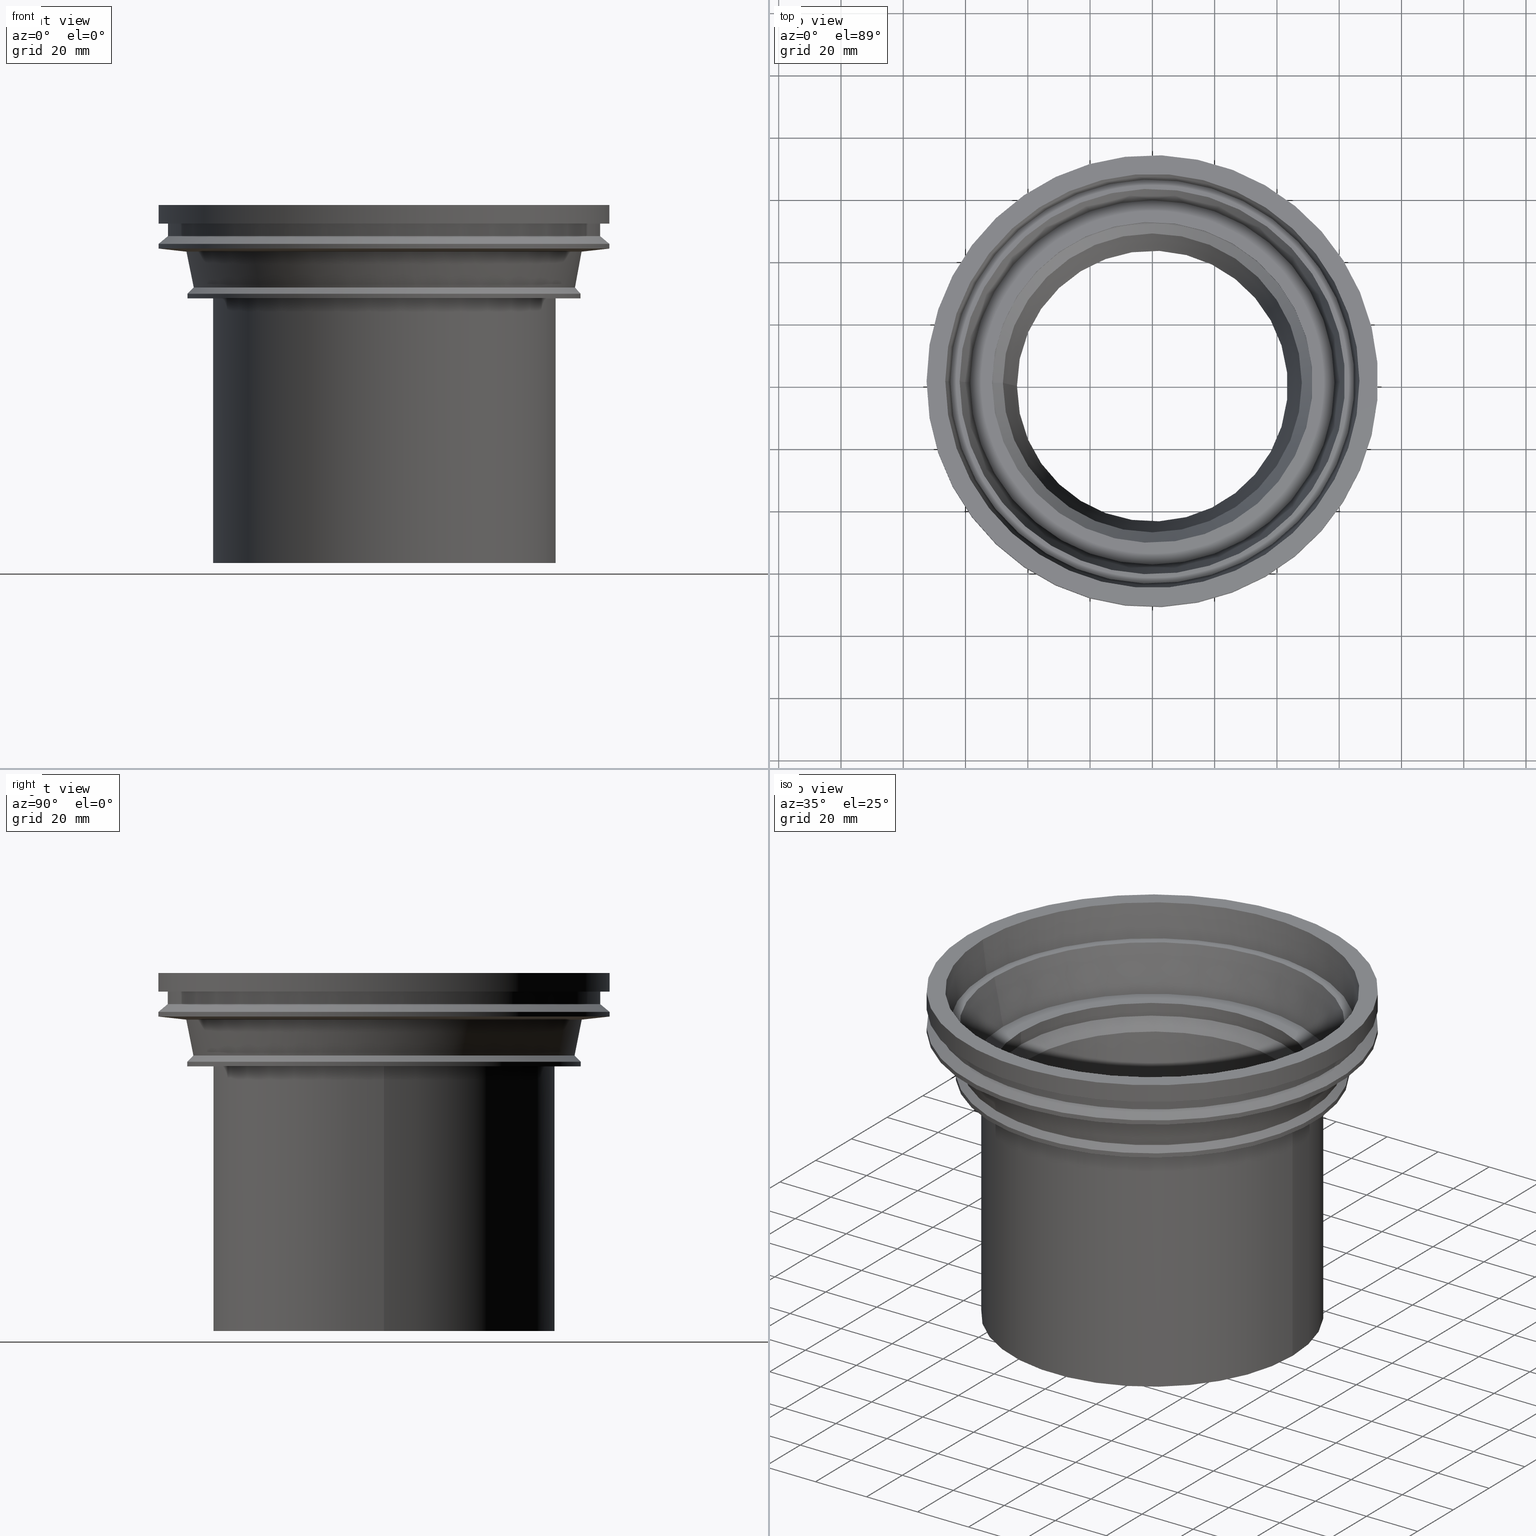
[diagram: canonical four-view strip — front | top / right | iso, engineering-drawing reading convention]
A machine part, canonical four-view strip (front | top / right | iso — engineering-drawing reading convention). The complete STEP part file that produces these views, byte-faithful:
ISO-10303-21;
HEADER;
/* Generated by software containing ST-Developer
 * from STEP Tools, Inc. (www.steptools.com) 
 */
/* OPTION: using custom renumber hook */

FILE_DESCRIPTION(
/* description */ ('STEP AP214'),
/* implementation_level */ '2;1');

FILE_NAME(
/* name */ '482010001(1)',
/* time_stamp */ '2022-12-23T08:15:30+01:00',
/* author */ ('License CC BY-ND 4.0'),
/* organization */ ('CADENAS'),
/* preprocessor_version */ 'ST-DEVELOPER v18.102',
/* originating_system */ 'PARTsolutions',
/* authorisation */ '  ');

FILE_SCHEMA (('AUTOMOTIVE_DESIGN {1 0 10303 214 3 1 1}'));
ENDSEC;

DATA;
#10=PROPERTY_DEFINITION_REPRESENTATION(#14,#12);
#11=PROPERTY_DEFINITION_REPRESENTATION(#15,#13);
#12=REPRESENTATION('',(#16),#588);
#13=REPRESENTATION('',(#17),#588);
#14=PROPERTY_DEFINITION('pmi validation property','',#597);
#15=PROPERTY_DEFINITION('pmi validation property','',#597);
#16=VALUE_REPRESENTATION_ITEM('number of annotations',COUNT_MEASURE(0.));
#17=VALUE_REPRESENTATION_ITEM('number of views',COUNT_MEASURE(0.));
#18=CONICAL_SURFACE('',#351,63.556,1.45945195543957);
#19=CONICAL_SURFACE('',#356,72.5,0.876058050598193);
#20=CONICAL_SURFACE('',#366,66.5,0.132797157435015);
#21=CONICAL_SURFACE('',#370,61.897,0.201179487707473);
#22=CONICAL_SURFACE('',#376,51.5,0.718829999621625);
#23=CONICAL_SURFACE('',#378,48.,0.0766302366143812);
#24=CONICAL_SURFACE('',#382,45.,0.0766314619462777);
#25=CONICAL_SURFACE('',#384,49.223,0.92729521800161);
#26=CONICAL_SURFACE('',#392,63.223,0.788389181397253);
#27=CONICAL_SURFACE('',#394,61.211,0.201155254725828);
#28=CONTEXT_DEPENDENT_SHAPE_REPRESENTATION(#32,#599);
#29=CONTEXT_DEPENDENT_SHAPE_REPRESENTATION(#33,#601);
#30=NEXT_ASSEMBLY_USAGE_OCCURRENCE('NAUO1','482010001(1,85)_P2',
'482010001(1,85)_P2',#602,#603,'');
#31=NEXT_ASSEMBLY_USAGE_OCCURRENCE('NAUO2','482010001(1)_P1',
'482010001(1)_P1',#602,#604,'');
#32=(
REPRESENTATION_RELATIONSHIP(' ',' ',#339,#338)
REPRESENTATION_RELATIONSHIP_WITH_TRANSFORMATION(#34)
SHAPE_REPRESENTATION_RELATIONSHIP()
);
#33=(
REPRESENTATION_RELATIONSHIP(' ',' ',#340,#338)
REPRESENTATION_RELATIONSHIP_WITH_TRANSFORMATION(#35)
SHAPE_REPRESENTATION_RELATIONSHIP()
);
#34=ITEM_DEFINED_TRANSFORMATION(' ',' ',#341,#350);
#35=ITEM_DEFINED_TRANSFORMATION(' ',' ',#341,#395);
#36=SHAPE_REPRESENTATION_RELATIONSHIP('','',#339,#38);
#37=SHAPE_REPRESENTATION_RELATIONSHIP('','',#340,#39);
#38=ADVANCED_BREP_SHAPE_REPRESENTATION('',(#333),#589);
#39=ADVANCED_BREP_SHAPE_REPRESENTATION('',(#334),#590);
#40=CYLINDRICAL_SURFACE('',#345,52.5);
#41=CYLINDRICAL_SURFACE('',#349,55.);
#42=CYLINDRICAL_SURFACE('',#354,72.5);
#43=CYLINDRICAL_SURFACE('',#358,69.5);
#44=CYLINDRICAL_SURFACE('',#362,72.5);
#45=CYLINDRICAL_SURFACE('',#374,51.5);
#46=CYLINDRICAL_SURFACE('',#386,53.223);
#47=CYLINDRICAL_SURFACE('',#390,63.223);
#48=ORIENTED_EDGE('',*,*,#100,.T.);
#49=ORIENTED_EDGE('',*,*,#101,.F.);
#50=ORIENTED_EDGE('',*,*,#102,.T.);
#51=ORIENTED_EDGE('',*,*,#100,.F.);
#52=ORIENTED_EDGE('',*,*,#103,.T.);
#53=ORIENTED_EDGE('',*,*,#102,.F.);
#54=ORIENTED_EDGE('',*,*,#101,.T.);
#55=ORIENTED_EDGE('',*,*,#103,.F.);
#56=ORIENTED_EDGE('',*,*,#104,.T.);
#57=ORIENTED_EDGE('',*,*,#105,.F.);
#58=ORIENTED_EDGE('',*,*,#106,.T.);
#59=ORIENTED_EDGE('',*,*,#104,.F.);
#60=ORIENTED_EDGE('',*,*,#107,.T.);
#61=ORIENTED_EDGE('',*,*,#106,.F.);
#62=ORIENTED_EDGE('',*,*,#108,.T.);
#63=ORIENTED_EDGE('',*,*,#107,.F.);
#64=ORIENTED_EDGE('',*,*,#109,.T.);
#65=ORIENTED_EDGE('',*,*,#108,.F.);
#66=ORIENTED_EDGE('',*,*,#110,.T.);
#67=ORIENTED_EDGE('',*,*,#109,.F.);
#68=ORIENTED_EDGE('',*,*,#111,.T.);
#69=ORIENTED_EDGE('',*,*,#110,.F.);
#70=ORIENTED_EDGE('',*,*,#112,.T.);
#71=ORIENTED_EDGE('',*,*,#111,.F.);
#72=ORIENTED_EDGE('',*,*,#113,.T.);
#73=ORIENTED_EDGE('',*,*,#112,.F.);
#74=ORIENTED_EDGE('',*,*,#114,.T.);
#75=ORIENTED_EDGE('',*,*,#113,.F.);
#76=ORIENTED_EDGE('',*,*,#115,.T.);
#77=ORIENTED_EDGE('',*,*,#114,.F.);
#78=ORIENTED_EDGE('',*,*,#116,.T.);
#79=ORIENTED_EDGE('',*,*,#115,.F.);
#80=ORIENTED_EDGE('',*,*,#117,.T.);
#81=ORIENTED_EDGE('',*,*,#116,.F.);
#82=ORIENTED_EDGE('',*,*,#118,.T.);
#83=ORIENTED_EDGE('',*,*,#117,.F.);
#84=ORIENTED_EDGE('',*,*,#119,.T.);
#85=ORIENTED_EDGE('',*,*,#118,.F.);
#86=ORIENTED_EDGE('',*,*,#120,.T.);
#87=ORIENTED_EDGE('',*,*,#119,.F.);
#88=ORIENTED_EDGE('',*,*,#121,.T.);
#89=ORIENTED_EDGE('',*,*,#120,.F.);
#90=ORIENTED_EDGE('',*,*,#122,.T.);
#91=ORIENTED_EDGE('',*,*,#121,.F.);
#92=ORIENTED_EDGE('',*,*,#123,.T.);
#93=ORIENTED_EDGE('',*,*,#122,.F.);
#94=ORIENTED_EDGE('',*,*,#124,.T.);
#95=ORIENTED_EDGE('',*,*,#123,.F.);
#96=ORIENTED_EDGE('',*,*,#125,.T.);
#97=ORIENTED_EDGE('',*,*,#124,.F.);
#98=ORIENTED_EDGE('',*,*,#105,.T.);
#99=ORIENTED_EDGE('',*,*,#125,.F.);
#100=EDGE_CURVE('',#126,#126,#152,.T.);
#101=EDGE_CURVE('',#127,#127,#153,.T.);
#102=EDGE_CURVE('',#128,#128,#154,.T.);
#103=EDGE_CURVE('',#129,#129,#155,.T.);
#104=EDGE_CURVE('',#130,#130,#156,.T.);
#105=EDGE_CURVE('',#131,#131,#157,.T.);
#106=EDGE_CURVE('',#132,#132,#158,.T.);
#107=EDGE_CURVE('',#133,#133,#159,.T.);
#108=EDGE_CURVE('',#134,#134,#160,.T.);
#109=EDGE_CURVE('',#135,#135,#161,.T.);
#110=EDGE_CURVE('',#136,#136,#162,.T.);
#111=EDGE_CURVE('',#137,#137,#163,.T.);
#112=EDGE_CURVE('',#138,#138,#164,.T.);
#113=EDGE_CURVE('',#139,#139,#165,.T.);
#114=EDGE_CURVE('',#140,#140,#166,.T.);
#115=EDGE_CURVE('',#141,#141,#167,.T.);
#116=EDGE_CURVE('',#142,#142,#168,.T.);
#117=EDGE_CURVE('',#143,#143,#169,.T.);
#118=EDGE_CURVE('',#144,#144,#170,.T.);
#119=EDGE_CURVE('',#145,#145,#171,.T.);
#120=EDGE_CURVE('',#146,#146,#172,.T.);
#121=EDGE_CURVE('',#147,#147,#173,.T.);
#122=EDGE_CURVE('',#148,#148,#174,.T.);
#123=EDGE_CURVE('',#149,#149,#175,.T.);
#124=EDGE_CURVE('',#150,#150,#176,.T.);
#125=EDGE_CURVE('',#151,#151,#177,.T.);
#126=VERTEX_POINT('',#509);
#127=VERTEX_POINT('',#511);
#128=VERTEX_POINT('',#514);
#129=VERTEX_POINT('',#517);
#130=VERTEX_POINT('',#522);
#131=VERTEX_POINT('',#524);
#132=VERTEX_POINT('',#527);
#133=VERTEX_POINT('',#530);
#134=VERTEX_POINT('',#533);
#135=VERTEX_POINT('',#536);
#136=VERTEX_POINT('',#539);
#137=VERTEX_POINT('',#542);
#138=VERTEX_POINT('',#545);
#139=VERTEX_POINT('',#548);
#140=VERTEX_POINT('',#551);
#141=VERTEX_POINT('',#554);
#142=VERTEX_POINT('',#557);
#143=VERTEX_POINT('',#560);
#144=VERTEX_POINT('',#563);
#145=VERTEX_POINT('',#566);
#146=VERTEX_POINT('',#569);
#147=VERTEX_POINT('',#572);
#148=VERTEX_POINT('',#575);
#149=VERTEX_POINT('',#578);
#150=VERTEX_POINT('',#581);
#151=VERTEX_POINT('',#584);
#152=CIRCLE('',#343,52.5);
#153=CIRCLE('',#344,55.);
#154=CIRCLE('',#346,52.5);
#155=CIRCLE('',#348,55.);
#156=CIRCLE('',#352,72.5);
#157=CIRCLE('',#353,63.556);
#158=CIRCLE('',#355,72.5);
#159=CIRCLE('',#357,69.5);
#160=CIRCLE('',#359,69.5);
#161=CIRCLE('',#361,72.5);
#162=CIRCLE('',#363,72.5);
#163=CIRCLE('',#365,66.5);
#164=CIRCLE('',#367,64.897);
#165=CIRCLE('',#369,61.897);
#166=CIRCLE('',#371,58.5);
#167=CIRCLE('',#373,51.5);
#168=CIRCLE('',#375,51.5);
#169=CIRCLE('',#377,48.);
#170=CIRCLE('',#379,43.482);
#171=CIRCLE('',#381,45.);
#172=CIRCLE('',#383,49.223);
#173=CIRCLE('',#385,53.223);
#174=CIRCLE('',#387,53.223);
#175=CIRCLE('',#389,63.223);
#176=CIRCLE('',#391,63.223);
#177=CIRCLE('',#393,61.211);
#178=EDGE_LOOP('',(#48));
#179=EDGE_LOOP('',(#49));
#180=EDGE_LOOP('',(#50));
#181=EDGE_LOOP('',(#51));
#182=EDGE_LOOP('',(#52));
#183=EDGE_LOOP('',(#53));
#184=EDGE_LOOP('',(#54));
#185=EDGE_LOOP('',(#55));
#186=EDGE_LOOP('',(#56));
#187=EDGE_LOOP('',(#57));
#188=EDGE_LOOP('',(#58));
#189=EDGE_LOOP('',(#59));
#190=EDGE_LOOP('',(#60));
#191=EDGE_LOOP('',(#61));
#192=EDGE_LOOP('',(#62));
#193=EDGE_LOOP('',(#63));
#194=EDGE_LOOP('',(#64));
#195=EDGE_LOOP('',(#65));
#196=EDGE_LOOP('',(#66));
#197=EDGE_LOOP('',(#67));
#198=EDGE_LOOP('',(#68));
#199=EDGE_LOOP('',(#69));
#200=EDGE_LOOP('',(#70));
#201=EDGE_LOOP('',(#71));
#202=EDGE_LOOP('',(#72));
#203=EDGE_LOOP('',(#73));
#204=EDGE_LOOP('',(#74));
#205=EDGE_LOOP('',(#75));
#206=EDGE_LOOP('',(#76));
#207=EDGE_LOOP('',(#77));
#208=EDGE_LOOP('',(#78));
#209=EDGE_LOOP('',(#79));
#210=EDGE_LOOP('',(#80));
#211=EDGE_LOOP('',(#81));
#212=EDGE_LOOP('',(#82));
#213=EDGE_LOOP('',(#83));
#214=EDGE_LOOP('',(#84));
#215=EDGE_LOOP('',(#85));
#216=EDGE_LOOP('',(#86));
#217=EDGE_LOOP('',(#87));
#218=EDGE_LOOP('',(#88));
#219=EDGE_LOOP('',(#89));
#220=EDGE_LOOP('',(#90));
#221=EDGE_LOOP('',(#91));
#222=EDGE_LOOP('',(#92));
#223=EDGE_LOOP('',(#93));
#224=EDGE_LOOP('',(#94));
#225=EDGE_LOOP('',(#95));
#226=EDGE_LOOP('',(#96));
#227=EDGE_LOOP('',(#97));
#228=EDGE_LOOP('',(#98));
#229=EDGE_LOOP('',(#99));
#230=FACE_BOUND('',#178,.T.);
#231=FACE_BOUND('',#179,.T.);
#232=FACE_BOUND('',#180,.T.);
#233=FACE_BOUND('',#181,.T.);
#234=FACE_BOUND('',#182,.T.);
#235=FACE_BOUND('',#183,.T.);
#236=FACE_BOUND('',#184,.T.);
#237=FACE_BOUND('',#185,.T.);
#238=FACE_BOUND('',#186,.T.);
#239=FACE_BOUND('',#187,.T.);
#240=FACE_BOUND('',#188,.T.);
#241=FACE_BOUND('',#189,.T.);
#242=FACE_BOUND('',#190,.T.);
#243=FACE_BOUND('',#191,.T.);
#244=FACE_BOUND('',#192,.T.);
#245=FACE_BOUND('',#193,.T.);
#246=FACE_BOUND('',#194,.T.);
#247=FACE_BOUND('',#195,.T.);
#248=FACE_BOUND('',#196,.T.);
#249=FACE_BOUND('',#197,.T.);
#250=FACE_BOUND('',#198,.T.);
#251=FACE_BOUND('',#199,.T.);
#252=FACE_BOUND('',#200,.T.);
#253=FACE_BOUND('',#201,.T.);
#254=FACE_BOUND('',#202,.T.);
#255=FACE_BOUND('',#203,.T.);
#256=FACE_BOUND('',#204,.T.);
#257=FACE_BOUND('',#205,.T.);
#258=FACE_BOUND('',#206,.T.);
#259=FACE_BOUND('',#207,.T.);
#260=FACE_BOUND('',#208,.T.);
#261=FACE_BOUND('',#209,.T.);
#262=FACE_BOUND('',#210,.T.);
#263=FACE_BOUND('',#211,.T.);
#264=FACE_BOUND('',#212,.T.);
#265=FACE_BOUND('',#213,.T.);
#266=FACE_BOUND('',#214,.T.);
#267=FACE_BOUND('',#215,.T.);
#268=FACE_BOUND('',#216,.T.);
#269=FACE_BOUND('',#217,.T.);
#270=FACE_BOUND('',#218,.T.);
#271=FACE_BOUND('',#219,.T.);
#272=FACE_BOUND('',#220,.T.);
#273=FACE_BOUND('',#221,.T.);
#274=FACE_BOUND('',#222,.T.);
#275=FACE_BOUND('',#223,.T.);
#276=FACE_BOUND('',#224,.T.);
#277=FACE_BOUND('',#225,.T.);
#278=FACE_BOUND('',#226,.T.);
#279=FACE_BOUND('',#227,.T.);
#280=FACE_BOUND('',#228,.T.);
#281=FACE_BOUND('',#229,.T.);
#282=PLANE('',#342);
#283=PLANE('',#347);
#284=PLANE('',#360);
#285=PLANE('',#364);
#286=PLANE('',#368);
#287=PLANE('',#372);
#288=PLANE('',#380);
#289=PLANE('',#388);
#290=ADVANCED_FACE('',(#230,#231),#282,.T.);
#291=ADVANCED_FACE('',(#232,#233),#40,.F.);
#292=ADVANCED_FACE('',(#234,#235),#283,.T.);
#293=ADVANCED_FACE('',(#236,#237),#41,.T.);
#294=ADVANCED_FACE('',(#238,#239),#18,.T.);
#295=ADVANCED_FACE('',(#240,#241),#42,.T.);
#296=ADVANCED_FACE('',(#242,#243),#19,.T.);
#297=ADVANCED_FACE('',(#244,#245),#43,.T.);
#298=ADVANCED_FACE('',(#246,#247),#284,.T.);
#299=ADVANCED_FACE('',(#248,#249),#44,.T.);
#300=ADVANCED_FACE('',(#250,#251),#285,.T.);
#301=ADVANCED_FACE('',(#252,#253),#20,.F.);
#302=ADVANCED_FACE('',(#254,#255),#286,.T.);
#303=ADVANCED_FACE('',(#256,#257),#21,.F.);
#304=ADVANCED_FACE('',(#258,#259),#287,.T.);
#305=ADVANCED_FACE('',(#260,#261),#45,.F.);
#306=ADVANCED_FACE('',(#262,#263),#22,.F.);
#307=ADVANCED_FACE('',(#264,#265),#23,.F.);
#308=ADVANCED_FACE('',(#266,#267),#288,.T.);
#309=ADVANCED_FACE('',(#268,#269),#24,.T.);
#310=ADVANCED_FACE('',(#270,#271),#25,.T.);
#311=ADVANCED_FACE('',(#272,#273),#46,.T.);
#312=ADVANCED_FACE('',(#274,#275),#289,.T.);
#313=ADVANCED_FACE('',(#276,#277),#47,.T.);
#314=ADVANCED_FACE('',(#278,#279),#26,.T.);
#315=ADVANCED_FACE('',(#280,#281),#27,.T.);
#316=CLOSED_SHELL('',(#290,#291,#292,#293));
#317=CLOSED_SHELL('',(#294,#295,#296,#297,#298,#299,#300,#301,#302,#303,
#304,#305,#306,#307,#308,#309,#310,#311,#312,#313,#314,#315));
#318=STYLED_ITEM('',(#320),#333);
#319=STYLED_ITEM('',(#321),#334);
#320=PRESENTATION_STYLE_ASSIGNMENT((#322));
#321=PRESENTATION_STYLE_ASSIGNMENT((#323));
#322=SURFACE_STYLE_USAGE(.BOTH.,#324);
#323=SURFACE_STYLE_USAGE(.BOTH.,#325);
#324=SURFACE_SIDE_STYLE('',(#326));
#325=SURFACE_SIDE_STYLE('',(#327));
#326=SURFACE_STYLE_FILL_AREA(#328);
#327=SURFACE_STYLE_FILL_AREA(#329);
#328=FILL_AREA_STYLE('',(#330));
#329=FILL_AREA_STYLE('',(#331));
#330=FILL_AREA_STYLE_COLOUR('',#332);
#331=FILL_AREA_STYLE_COLOUR('',#332);
#332=COLOUR_RGB('',0.689999997615814,0.689999997615814,0.689999997615814);
#333=MANIFOLD_SOLID_BREP('482010001(1,85)_P2',#316);
#334=MANIFOLD_SOLID_BREP('482010001(1)_P1',#317);
#335=SHAPE_DEFINITION_REPRESENTATION(#597,#338);
#336=SHAPE_DEFINITION_REPRESENTATION(#598,#339);
#337=SHAPE_DEFINITION_REPRESENTATION(#600,#340);
#338=SHAPE_REPRESENTATION('482010001(1)',(#341,#350,#395),#588);
#339=SHAPE_REPRESENTATION('482010001(1,85)_P2',(#341),#589);
#340=SHAPE_REPRESENTATION('482010001(1)_P1',(#341),#590);
#341=AXIS2_PLACEMENT_3D('',#506,#396,#397);
#342=AXIS2_PLACEMENT_3D('',#507,#398,#399);
#343=AXIS2_PLACEMENT_3D('',#508,#400,#401);
#344=AXIS2_PLACEMENT_3D('',#510,#402,#403);
#345=AXIS2_PLACEMENT_3D('',#512,#404,#405);
#346=AXIS2_PLACEMENT_3D('',#513,#406,#407);
#347=AXIS2_PLACEMENT_3D('',#515,#408,#409);
#348=AXIS2_PLACEMENT_3D('',#516,#410,#411);
#349=AXIS2_PLACEMENT_3D('',#518,#412,#413);
#350=AXIS2_PLACEMENT_3D('',#519,#414,#415);
#351=AXIS2_PLACEMENT_3D('',#520,#416,#417);
#352=AXIS2_PLACEMENT_3D('',#521,#418,#419);
#353=AXIS2_PLACEMENT_3D('',#523,#420,#421);
#354=AXIS2_PLACEMENT_3D('',#525,#422,#423);
#355=AXIS2_PLACEMENT_3D('',#526,#424,#425);
#356=AXIS2_PLACEMENT_3D('',#528,#426,#427);
#357=AXIS2_PLACEMENT_3D('',#529,#428,#429);
#358=AXIS2_PLACEMENT_3D('',#531,#430,#431);
#359=AXIS2_PLACEMENT_3D('',#532,#432,#433);
#360=AXIS2_PLACEMENT_3D('',#534,#434,#435);
#361=AXIS2_PLACEMENT_3D('',#535,#436,#437);
#362=AXIS2_PLACEMENT_3D('',#537,#438,#439);
#363=AXIS2_PLACEMENT_3D('',#538,#440,#441);
#364=AXIS2_PLACEMENT_3D('',#540,#442,#443);
#365=AXIS2_PLACEMENT_3D('',#541,#444,#445);
#366=AXIS2_PLACEMENT_3D('',#543,#446,#447);
#367=AXIS2_PLACEMENT_3D('',#544,#448,#449);
#368=AXIS2_PLACEMENT_3D('',#546,#450,#451);
#369=AXIS2_PLACEMENT_3D('',#547,#452,#453);
#370=AXIS2_PLACEMENT_3D('',#549,#454,#455);
#371=AXIS2_PLACEMENT_3D('',#550,#456,#457);
#372=AXIS2_PLACEMENT_3D('',#552,#458,#459);
#373=AXIS2_PLACEMENT_3D('',#553,#460,#461);
#374=AXIS2_PLACEMENT_3D('',#555,#462,#463);
#375=AXIS2_PLACEMENT_3D('',#556,#464,#465);
#376=AXIS2_PLACEMENT_3D('',#558,#466,#467);
#377=AXIS2_PLACEMENT_3D('',#559,#468,#469);
#378=AXIS2_PLACEMENT_3D('',#561,#470,#471);
#379=AXIS2_PLACEMENT_3D('',#562,#472,#473);
#380=AXIS2_PLACEMENT_3D('',#564,#474,#475);
#381=AXIS2_PLACEMENT_3D('',#565,#476,#477);
#382=AXIS2_PLACEMENT_3D('',#567,#478,#479);
#383=AXIS2_PLACEMENT_3D('',#568,#480,#481);
#384=AXIS2_PLACEMENT_3D('',#570,#482,#483);
#385=AXIS2_PLACEMENT_3D('',#571,#484,#485);
#386=AXIS2_PLACEMENT_3D('',#573,#486,#487);
#387=AXIS2_PLACEMENT_3D('',#574,#488,#489);
#388=AXIS2_PLACEMENT_3D('',#576,#490,#491);
#389=AXIS2_PLACEMENT_3D('',#577,#492,#493);
#390=AXIS2_PLACEMENT_3D('',#579,#494,#495);
#391=AXIS2_PLACEMENT_3D('',#580,#496,#497);
#392=AXIS2_PLACEMENT_3D('',#582,#498,#499);
#393=AXIS2_PLACEMENT_3D('',#583,#500,#501);
#394=AXIS2_PLACEMENT_3D('',#585,#502,#503);
#395=AXIS2_PLACEMENT_3D('',#586,#504,#505);
#396=DIRECTION('',(0.,0.,1.));
#397=DIRECTION('',(1.,0.,0.));
#398=DIRECTION('',(0.,0.,-1.));
#399=DIRECTION('',(-1.,0.,0.));
#400=DIRECTION('',(0.,0.,1.));
#401=DIRECTION('',(1.,0.,0.));
#402=DIRECTION('',(0.,0.,1.));
#403=DIRECTION('',(1.,0.,0.));
#404=DIRECTION('',(0.,0.,1.));
#405=DIRECTION('',(1.,0.,0.));
#406=DIRECTION('',(0.,0.,1.));
#407=DIRECTION('',(1.,0.,0.));
#408=DIRECTION('',(0.,0.,1.));
#409=DIRECTION('',(1.,0.,0.));
#410=DIRECTION('',(0.,0.,1.));
#411=DIRECTION('',(1.,0.,0.));
#412=DIRECTION('',(0.,0.,1.));
#413=DIRECTION('',(1.,0.,0.));
#414=DIRECTION('',(0.,0.,1.));
#415=DIRECTION('',(1.,0.,0.));
#416=DIRECTION('',(0.,0.,1.));
#417=DIRECTION('',(1.,0.,0.));
#418=DIRECTION('',(0.,0.,-1.));
#419=DIRECTION('',(-1.,0.,0.));
#420=DIRECTION('',(0.,0.,-1.));
#421=DIRECTION('',(-1.,0.,0.));
#422=DIRECTION('',(0.,0.,-1.));
#423=DIRECTION('',(-1.,0.,0.));
#424=DIRECTION('',(0.,0.,-1.));
#425=DIRECTION('',(-1.,0.,0.));
#426=DIRECTION('',(0.,0.,-1.));
#427=DIRECTION('',(-1.,0.,0.));
#428=DIRECTION('',(0.,0.,-1.));
#429=DIRECTION('',(-1.,0.,0.));
#430=DIRECTION('',(0.,0.,-1.));
#431=DIRECTION('',(-1.,0.,0.));
#432=DIRECTION('',(0.,0.,-1.));
#433=DIRECTION('',(-1.,0.,0.));
#434=DIRECTION('',(0.,0.,-1.));
#435=DIRECTION('',(-1.,0.,0.));
#436=DIRECTION('',(0.,0.,-1.));
#437=DIRECTION('',(-1.,0.,0.));
#438=DIRECTION('',(0.,0.,-1.));
#439=DIRECTION('',(-1.,0.,0.));
#440=DIRECTION('',(0.,0.,-1.));
#441=DIRECTION('',(-1.,0.,0.));
#442=DIRECTION('',(0.,0.,1.));
#443=DIRECTION('',(1.,0.,0.));
#444=DIRECTION('',(0.,0.,-1.));
#445=DIRECTION('',(-1.,0.,0.));
#446=DIRECTION('',(0.,0.,1.));
#447=DIRECTION('',(1.,0.,0.));
#448=DIRECTION('',(0.,0.,-1.));
#449=DIRECTION('',(-1.,0.,0.));
#450=DIRECTION('',(0.,0.,1.));
#451=DIRECTION('',(1.,0.,0.));
#452=DIRECTION('',(0.,0.,-1.));
#453=DIRECTION('',(-1.,0.,0.));
#454=DIRECTION('',(0.,0.,1.));
#455=DIRECTION('',(1.,0.,0.));
#456=DIRECTION('',(0.,0.,-1.));
#457=DIRECTION('',(-1.,0.,0.));
#458=DIRECTION('',(0.,0.,1.));
#459=DIRECTION('',(1.,0.,0.));
#460=DIRECTION('',(0.,0.,-1.));
#461=DIRECTION('',(-1.,0.,0.));
#462=DIRECTION('',(0.,0.,-1.));
#463=DIRECTION('',(-1.,0.,0.));
#464=DIRECTION('',(0.,0.,-1.));
#465=DIRECTION('',(-1.,0.,0.));
#466=DIRECTION('',(0.,0.,1.));
#467=DIRECTION('',(1.,0.,0.));
#468=DIRECTION('',(0.,0.,-1.));
#469=DIRECTION('',(-1.,0.,0.));
#470=DIRECTION('',(0.,0.,1.));
#471=DIRECTION('',(1.,0.,0.));
#472=DIRECTION('',(0.,0.,-1.));
#473=DIRECTION('',(-1.,0.,0.));
#474=DIRECTION('',(0.,0.,-1.));
#475=DIRECTION('',(-1.,0.,0.));
#476=DIRECTION('',(0.,0.,-1.));
#477=DIRECTION('',(-1.,0.,0.));
#478=DIRECTION('',(0.,0.,1.));
#479=DIRECTION('',(1.,0.,0.));
#480=DIRECTION('',(0.,0.,-1.));
#481=DIRECTION('',(-1.,0.,0.));
#482=DIRECTION('',(0.,0.,1.));
#483=DIRECTION('',(1.,0.,0.));
#484=DIRECTION('',(0.,0.,-1.));
#485=DIRECTION('',(-1.,0.,0.));
#486=DIRECTION('',(0.,0.,-1.));
#487=DIRECTION('',(-1.,0.,0.));
#488=DIRECTION('',(0.,0.,-1.));
#489=DIRECTION('',(-1.,0.,0.));
#490=DIRECTION('',(0.,0.,-1.));
#491=DIRECTION('',(-1.,0.,0.));
#492=DIRECTION('',(0.,0.,-1.));
#493=DIRECTION('',(-1.,0.,0.));
#494=DIRECTION('',(0.,0.,-1.));
#495=DIRECTION('',(-1.,0.,0.));
#496=DIRECTION('',(0.,0.,-1.));
#497=DIRECTION('',(-1.,0.,0.));
#498=DIRECTION('',(0.,0.,-1.));
#499=DIRECTION('',(-1.,0.,0.));
#500=DIRECTION('',(0.,0.,-1.));
#501=DIRECTION('',(-1.,0.,0.));
#502=DIRECTION('',(0.,0.,1.));
#503=DIRECTION('',(1.,0.,0.));
#504=DIRECTION('',(0.,0.,1.));
#505=DIRECTION('',(1.,0.,0.));
#506=CARTESIAN_POINT('',(0.,0.,0.));
#507=CARTESIAN_POINT('',(55.,0.,-85.));
#508=CARTESIAN_POINT('',(0.,0.,-85.));
#509=CARTESIAN_POINT('',(52.5,0.,-85.));
#510=CARTESIAN_POINT('',(0.,0.,-85.));
#511=CARTESIAN_POINT('',(55.,0.,-85.));
#512=CARTESIAN_POINT('',(0.,0.,50.));
#513=CARTESIAN_POINT('',(0.,0.,0.));
#514=CARTESIAN_POINT('',(52.5,0.,0.));
#515=CARTESIAN_POINT('',(52.5,0.,0.));
#516=CARTESIAN_POINT('',(0.,0.,0.));
#517=CARTESIAN_POINT('',(55.,0.,0.));
#518=CARTESIAN_POINT('',(0.,0.,50.));
#519=CARTESIAN_POINT('',(0.,0.,-30.));
#520=CARTESIAN_POINT('',(0.,0.,-15.));
#521=CARTESIAN_POINT('',(0.,0.,-14.));
#522=CARTESIAN_POINT('',(-72.5,0.,-14.));
#523=CARTESIAN_POINT('',(0.,0.,-15.));
#524=CARTESIAN_POINT('',(-63.556,0.,-15.));
#525=CARTESIAN_POINT('',(0.,0.,-50.));
#526=CARTESIAN_POINT('',(0.,0.,-12.5));
#527=CARTESIAN_POINT('',(-72.5,0.,-12.5));
#528=CARTESIAN_POINT('',(0.,0.,-12.5));
#529=CARTESIAN_POINT('',(0.,0.,-10.));
#530=CARTESIAN_POINT('',(-69.5,0.,-10.));
#531=CARTESIAN_POINT('',(0.,0.,-50.));
#532=CARTESIAN_POINT('',(0.,0.,-6.00000000000001));
#533=CARTESIAN_POINT('',(-69.5,0.,-6.00000000000001));
#534=CARTESIAN_POINT('',(-69.5,0.,-6.00000000000001));
#535=CARTESIAN_POINT('',(0.,0.,-6.00000000000001));
#536=CARTESIAN_POINT('',(-72.5,0.,-6.00000000000001));
#537=CARTESIAN_POINT('',(0.,0.,-50.));
#538=CARTESIAN_POINT('',(0.,0.,-1.38777878078145E-14));
#539=CARTESIAN_POINT('',(-72.5,0.,-1.38777878078145E-14));
#540=CARTESIAN_POINT('',(-72.5,0.,-1.40443212615082E-14));
#541=CARTESIAN_POINT('',(0.,0.,-1.38777878078145E-14));
#542=CARTESIAN_POINT('',(-66.5,0.,-1.38777878078145E-14));
#543=CARTESIAN_POINT('',(0.,0.,-1.38777878078145E-14));
#544=CARTESIAN_POINT('',(0.,0.,-12.));
#545=CARTESIAN_POINT('',(-64.897,0.,-12.));
#546=CARTESIAN_POINT('',(-64.897,0.,-12.));
#547=CARTESIAN_POINT('',(0.,0.,-12.));
#548=CARTESIAN_POINT('',(-61.897,0.,-12.));
#549=CARTESIAN_POINT('',(0.,0.,-12.));
#550=CARTESIAN_POINT('',(0.,0.,-28.657));
#551=CARTESIAN_POINT('',(-58.5,0.,-28.657));
#552=CARTESIAN_POINT('',(-58.5,0.,-28.657));
#553=CARTESIAN_POINT('',(0.,0.,-28.657));
#554=CARTESIAN_POINT('',(-51.5,0.,-28.657));
#555=CARTESIAN_POINT('',(0.,0.,-50.));
#556=CARTESIAN_POINT('',(0.,0.,-33.157));
#557=CARTESIAN_POINT('',(-51.5,0.,-33.157));
#558=CARTESIAN_POINT('',(0.,0.,-33.157));
#559=CARTESIAN_POINT('',(0.,0.,-37.157));
#560=CARTESIAN_POINT('',(-48.,0.,-37.157));
#561=CARTESIAN_POINT('',(0.,0.,-37.157));
#562=CARTESIAN_POINT('',(0.,0.,-96.));
#563=CARTESIAN_POINT('',(-43.482,0.,-96.));
#564=CARTESIAN_POINT('',(-43.482,0.,-96.));
#565=CARTESIAN_POINT('',(0.,0.,-96.));
#566=CARTESIAN_POINT('',(-45.,0.,-96.));
#567=CARTESIAN_POINT('',(0.,0.,-96.));
#568=CARTESIAN_POINT('',(0.,0.,-41.));
#569=CARTESIAN_POINT('',(-49.223,0.,-41.));
#570=CARTESIAN_POINT('',(0.,0.,-41.));
#571=CARTESIAN_POINT('',(0.,0.,-38.));
#572=CARTESIAN_POINT('',(-53.223,0.,-38.));
#573=CARTESIAN_POINT('',(0.,0.,-50.));
#574=CARTESIAN_POINT('',(0.,0.,-30.));
#575=CARTESIAN_POINT('',(-53.223,0.,-30.));
#576=CARTESIAN_POINT('',(-53.223,0.,-30.));
#577=CARTESIAN_POINT('',(0.,0.,-30.));
#578=CARTESIAN_POINT('',(-63.223,0.,-30.));
#579=CARTESIAN_POINT('',(0.,0.,-50.));
#580=CARTESIAN_POINT('',(0.,0.,-28.5));
#581=CARTESIAN_POINT('',(-63.223,0.,-28.5));
#582=CARTESIAN_POINT('',(0.,0.,-28.5));
#583=CARTESIAN_POINT('',(0.,0.,-26.5));
#584=CARTESIAN_POINT('',(-61.211,0.,-26.5));
#585=CARTESIAN_POINT('',(0.,0.,-26.5));
#586=CARTESIAN_POINT('',(0.,0.,0.));
#587=MECHANICAL_DESIGN_GEOMETRIC_PRESENTATION_REPRESENTATION('',(#318,#319),
#588);
#588=(
GEOMETRIC_REPRESENTATION_CONTEXT(3)
GLOBAL_UNCERTAINTY_ASSIGNED_CONTEXT((#591))
GLOBAL_UNIT_ASSIGNED_CONTEXT((#596,#595,#594))
REPRESENTATION_CONTEXT('482010001(1)','TOP_LEVEL_ASSEMBLY_PART')
);
#589=(
GEOMETRIC_REPRESENTATION_CONTEXT(3)
GLOBAL_UNCERTAINTY_ASSIGNED_CONTEXT((#592))
GLOBAL_UNIT_ASSIGNED_CONTEXT((#596,#595,#594))
REPRESENTATION_CONTEXT('482010001(1,85)_P2','COMPONENT_PART')
);
#590=(
GEOMETRIC_REPRESENTATION_CONTEXT(3)
GLOBAL_UNCERTAINTY_ASSIGNED_CONTEXT((#593))
GLOBAL_UNIT_ASSIGNED_CONTEXT((#596,#595,#594))
REPRESENTATION_CONTEXT('482010001(1)_P1','COMPONENT_PART')
);
#591=UNCERTAINTY_MEASURE_WITH_UNIT(LENGTH_MEASURE(0.005),#596,
'DISTANCE_ACCURACY_VALUE','Maximum Tolerance applied to model');
#592=UNCERTAINTY_MEASURE_WITH_UNIT(LENGTH_MEASURE(0.005),#596,
'DISTANCE_ACCURACY_VALUE','Maximum Tolerance applied to model');
#593=UNCERTAINTY_MEASURE_WITH_UNIT(LENGTH_MEASURE(0.005),#596,
'DISTANCE_ACCURACY_VALUE','Maximum Tolerance applied to model');
#594=(
NAMED_UNIT(*)
SI_UNIT($,.STERADIAN.)
SOLID_ANGLE_UNIT()
);
#595=(
NAMED_UNIT(*)
PLANE_ANGLE_UNIT()
SI_UNIT($,.RADIAN.)
);
#596=(
LENGTH_UNIT()
NAMED_UNIT(*)
SI_UNIT(.MILLI.,.METRE.)
);
#597=PRODUCT_DEFINITION_SHAPE('','',#602);
#598=PRODUCT_DEFINITION_SHAPE('','',#603);
#599=PRODUCT_DEFINITION_SHAPE(' ','NAUO PRDDFN',#30);
#600=PRODUCT_DEFINITION_SHAPE('','',#604);
#601=PRODUCT_DEFINITION_SHAPE(' ','NAUO PRDDFN',#31);
#602=PRODUCT_DEFINITION('','',#608,#605);
#603=PRODUCT_DEFINITION('','',#609,#606);
#604=PRODUCT_DEFINITION('','',#610,#607);
#605=PRODUCT_DEFINITION_CONTEXT('',#624,'design');
#606=PRODUCT_DEFINITION_CONTEXT('',#624,'design');
#607=PRODUCT_DEFINITION_CONTEXT('',#624,'design');
#608=PRODUCT_DEFINITION_FORMATION_WITH_SPECIFIED_SOURCE('','',#614,
 .NOT_KNOWN.);
#609=PRODUCT_DEFINITION_FORMATION_WITH_SPECIFIED_SOURCE('','',#615,
 .NOT_KNOWN.);
#610=PRODUCT_DEFINITION_FORMATION_WITH_SPECIFIED_SOURCE('','',#616,
 .NOT_KNOWN.);
#611=PRODUCT_RELATED_PRODUCT_CATEGORY('','',(#614));
#612=PRODUCT_RELATED_PRODUCT_CATEGORY('','',(#615));
#613=PRODUCT_RELATED_PRODUCT_CATEGORY('','',(#616));
#614=PRODUCT('482010001(1)','482010001(1)','482010001(1)',(#620));
#615=PRODUCT('482010001(1,85)_P2','482010001(1,85)_P2',
'482010001(1,85)_P2',(#621));
#616=PRODUCT('482010001(1)_P1','482010001(1)_P1','482010001(1)_P1',(#622));
#617=PRODUCT_CATEGORY('','');
#618=PRODUCT_CATEGORY('','');
#619=PRODUCT_CATEGORY('','');
#620=PRODUCT_CONTEXT('',#624,'mechanical');
#621=PRODUCT_CONTEXT('',#624,'mechanical');
#622=PRODUCT_CONTEXT('',#624,'mechanical');
#623=APPLICATION_PROTOCOL_DEFINITION('international standard',
'automotive_design',2010,#624);
#624=APPLICATION_CONTEXT(
'core data for automotive mechanical design processes');
ENDSEC;
END-ISO-10303-21;
